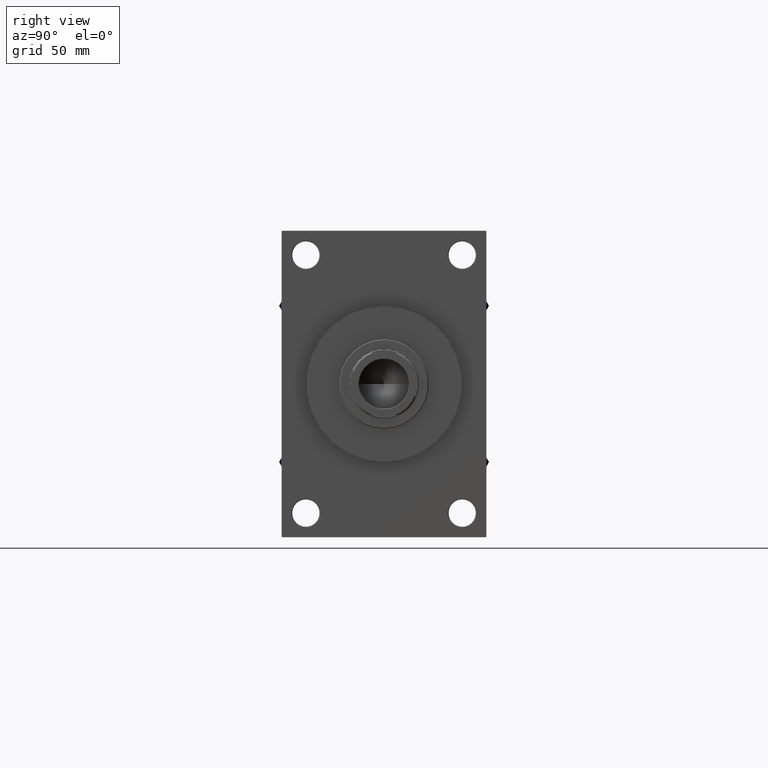
[diagram: clean part render]
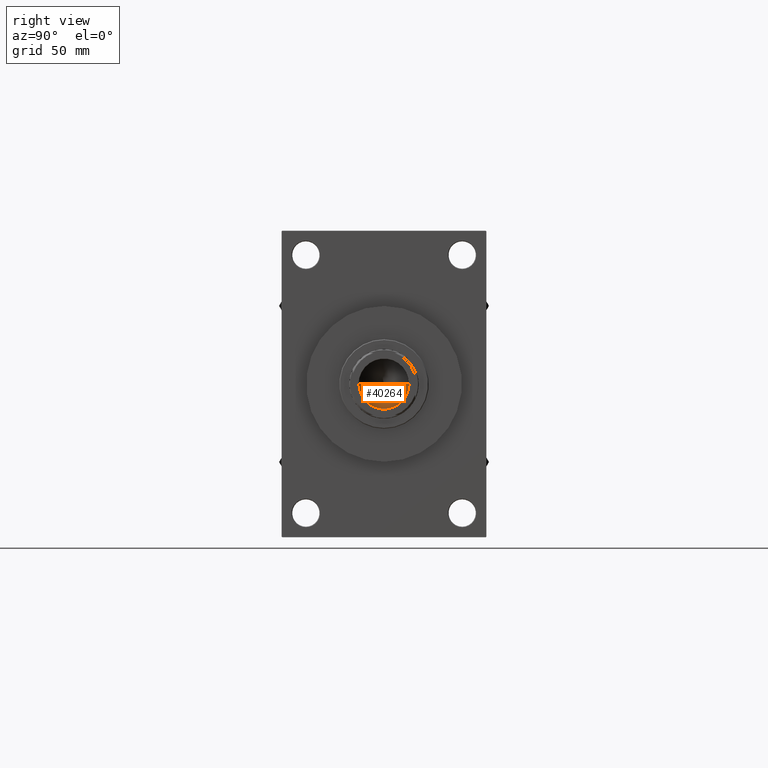
[diagram: same view with one face highlighted and labeled with its STEP entity id]
A machine part, right view. The second image highlights one B-rep face of the part: STEP entity #40264.
In plain terms, the highlighted conical surface has half-angle 59 deg.
Its self-contained STEP definition (entity closure, byte-faithful):
#193 = VERTEX_POINT ( 'NONE', #17143 ) ;
#3699 = CARTESIAN_POINT ( 'NONE',  ( -20.24999999999998934, 2.479909768273389117E-15, 366.0000000000000000 ) ) ;
#5816 = DIRECTION ( 'NONE',  ( -0.000000000000000000, -0.000000000000000000, 1.000000000000000000 ) ) ;
#6188 = VERTEX_POINT ( 'NONE', #9240 ) ;
#7243 = EDGE_LOOP ( 'NONE', ( #45893, #10327, #15937 ) ) ;
#9240 = CARTESIAN_POINT ( 'NONE',  ( -20.24999999999998934, 2.479909768273389117E-15, 366.0000000000000000 ) ) ;
#9577 = VERTEX_POINT ( 'NONE', #18649 ) ;
#10083 = DIRECTION ( 'NONE',  ( -0.000000000000000000, -0.000000000000000000, 1.000000000000000000 ) ) ;
#10327 = ORIENTED_EDGE ( 'NONE', *, *, #30426, .T. ) ;
#12584 = EDGE_CURVE ( 'NONE', #193, #6188, #18427, .T. ) ;
#14654 = AXIS2_PLACEMENT_3D ( 'NONE', #43235, #10083, #24825 ) ;
#15937 = ORIENTED_EDGE ( 'NONE', *, *, #42925, .T. ) ;
#16169 = CIRCLE ( 'NONE', #33168, 20.24999999999998934 ) ;
#17143 = CARTESIAN_POINT ( 'NONE',  ( -1.584115414415908206E-14, 0.000000000000000000, 353.8325724646918502 ) ) ;
#18427 = LINE ( 'NONE', #3699, #25067 ) ;
#18649 = CARTESIAN_POINT ( 'NONE',  ( 20.24999999999998934, 0.000000000000000000, 366.0000000000000000 ) ) ;
#22063 = DIRECTION ( 'NONE',  ( -0.8571673007021112234, 1.049727191138617340E-16, 0.5150380749100560429 ) ) ;
#22075 = VECTOR ( 'NONE', #33705, 1000.000000000000000 ) ;
#24825 = DIRECTION ( 'NONE',  ( 1.000000000000000000, 0.000000000000000000, 0.000000000000000000 ) ) ;
#25067 = VECTOR ( 'NONE', #22063, 1000.000000000000000 ) ;
#25303 = FACE_OUTER_BOUND ( 'NONE', #7243, .T. ) ;
#25941 = LINE ( 'NONE', #37103, #22075 ) ;
#30426 = EDGE_CURVE ( 'NONE', #193, #9577, #25941, .T. ) ;
#33168 = AXIS2_PLACEMENT_3D ( 'NONE', #43277, #5816, #35311 ) ;
#33705 = DIRECTION ( 'NONE',  ( 0.8571673007021112234, 0.000000000000000000, 0.5150380749100560429 ) ) ;
#35311 = DIRECTION ( 'NONE',  ( 1.000000000000000000, 0.000000000000000000, 0.000000000000000000 ) ) ;
#37103 = CARTESIAN_POINT ( 'NONE',  ( 20.24999999999998934, 0.000000000000000000, 366.0000000000000000 ) ) ;
#40264 = ADVANCED_FACE ( 'NONE', ( #25303 ), #47121, .F. ) ;
#42925 = EDGE_CURVE ( 'NONE', #9577, #6188, #16169, .T. ) ;
#43235 = CARTESIAN_POINT ( 'NONE',  ( 0.000000000000000000, 0.000000000000000000, 366.0000000000000000 ) ) ;
#43277 = CARTESIAN_POINT ( 'NONE',  ( 0.000000000000000000, 0.000000000000000000, 366.0000000000000000 ) ) ;
#45893 = ORIENTED_EDGE ( 'NONE', *, *, #12584, .F. ) ;
#47121 = CONICAL_SURFACE ( 'NONE', #14654, 20.24999999999998934, 1.029744258676652313 ) ;